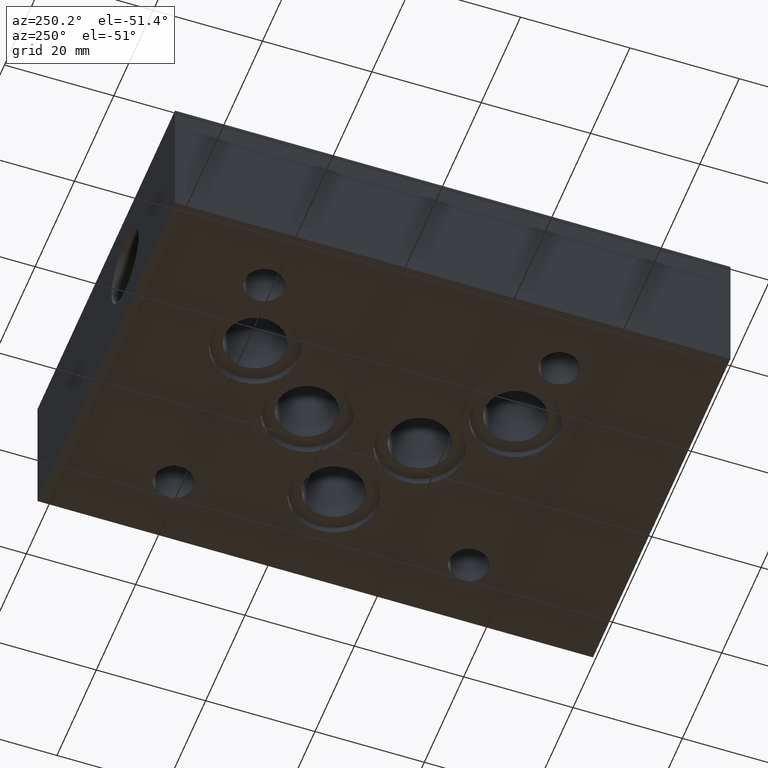
[diagram: clean part render]
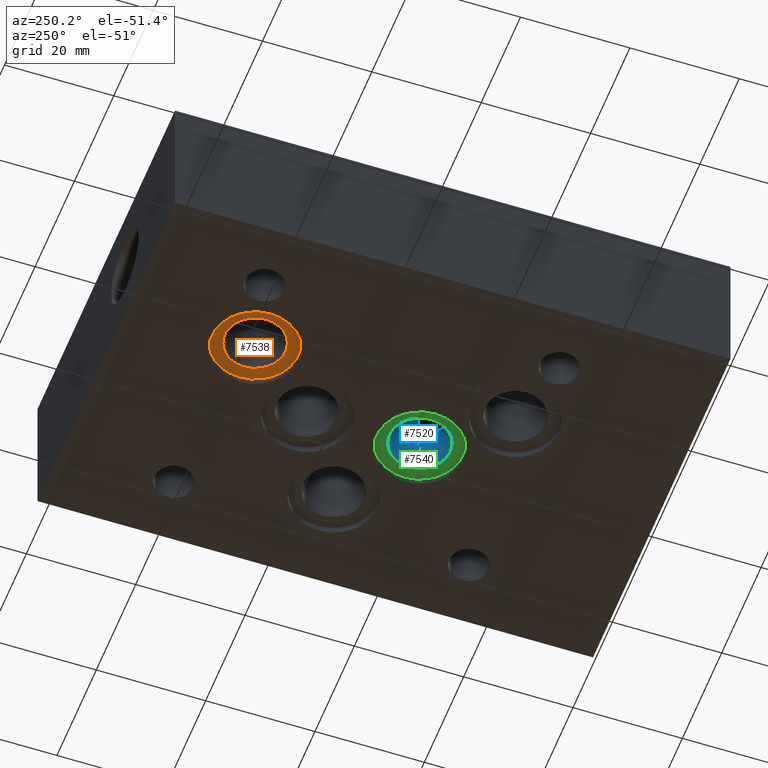
[diagram: same view with three faces highlighted in distinct colors, each labeled with its STEP entity id]
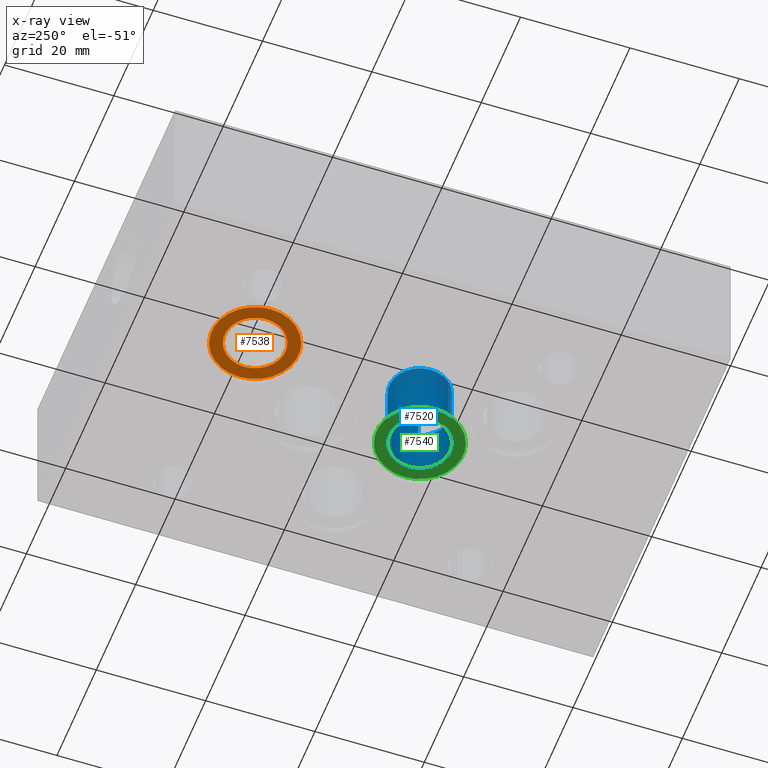
[diagram: x-ray of the same camera — body ghosted, the three highlighted faces saturated]
A machine part, auxiliary view with three faces highlighted in distinct colors.
The next image is the same camera in x-ray (body ghosted, the three faces saturated) — at least one of them is partly hidden behind the body in this view.
Their STEP definitions:

[orange] entity #7538 — the highlighted planar face has unit normal (0, 0, -1).
#65=CIRCLE('',#7851,5.5626);
#107=CIRCLE('',#7913,7.9375);
#108=CIRCLE('',#7914,7.9375);
#161=FACE_BOUND('',#1222,.T.);
#443=PLANE('',#7915);
#809=FACE_OUTER_BOUND('',#1221,.T.);
#1221=EDGE_LOOP('',(#6678,#6679));
#1222=EDGE_LOOP('',(#6680));
#3626=VERTEX_POINT('',#12353);
#3681=VERTEX_POINT('',#12690);
#3682=VERTEX_POINT('',#12692);
#4623=EDGE_CURVE('',#3626,#3626,#65,.T.);
#4702=EDGE_CURVE('',#3682,#3681,#107,.T.);
#4703=EDGE_CURVE('',#3681,#3682,#108,.T.);
#6678=ORIENTED_EDGE('',*,*,#4702,.T.);
#6679=ORIENTED_EDGE('',*,*,#4703,.T.);
#6680=ORIENTED_EDGE('',*,*,#4623,.T.);
#7538=ADVANCED_FACE('',(#809,#161),#443,.T.);
#7851=AXIS2_PLACEMENT_3D('',#12354,#9271,#9272);
#7913=AXIS2_PLACEMENT_3D('',#12693,#9419,#9420);
#7914=AXIS2_PLACEMENT_3D('',#12694,#9421,#9422);
#7915=AXIS2_PLACEMENT_3D('',#12695,#9423,#9424);
#9271=DIRECTION('center_axis',(0.,0.,1.));
#9272=DIRECTION('ref_axis',(1.,0.,0.));
#9419=DIRECTION('center_axis',(0.,0.,-1.));
#9420=DIRECTION('ref_axis',(1.,0.,0.));
#9421=DIRECTION('center_axis',(0.,0.,-1.));
#9422=DIRECTION('ref_axis',(1.,0.,0.));
#9423=DIRECTION('center_axis',(0.,0.,-1.));
#9424=DIRECTION('ref_axis',(1.,0.,0.));
#12353=CARTESIAN_POINT('',(19.8501,77.8002,1.3208));
#12354=CARTESIAN_POINT('Origin',(25.4127,77.8002,1.3208));
#12690=CARTESIAN_POINT('',(17.4752,77.8002,1.3208));
#12692=CARTESIAN_POINT('',(33.3502,77.8002,1.3208));
#12693=CARTESIAN_POINT('Origin',(25.4127,77.8002,1.3208));
#12694=CARTESIAN_POINT('Origin',(25.4127,77.8002,1.3208));
#12695=CARTESIAN_POINT('Origin',(25.4127,77.8002,1.3208));

[blue] entity #7520 — the highlighted cylindrical surface (bore or boss wall) has radius 5.5626 mm, axis along (0, 0, -1).
#20=CYLINDRICAL_SURFACE('',#7859,5.5626);
#69=CIRCLE('',#7857,5.5626);
#70=CIRCLE('',#7858,5.5626);
#71=CIRCLE('',#7860,5.5626);
#791=FACE_OUTER_BOUND('',#1200,.T.);
#1200=EDGE_LOOP('',(#6565,#6566,#6567,#6568,#6569,#6570,#6571,#6572));
#2023=LINE('',#12431,#2815);
#2024=LINE('',#12433,#2816);
#2025=LINE('',#12445,#2817);
#2815=VECTOR('',#9295,5.5626);
#2816=VECTOR('',#9296,10.);
#2817=VECTOR('',#9297,10.);
#2996=B_SPLINE_CURVE_WITH_KNOTS('',3,(#12435,#12436,#12437,#12438,#12439,
#12440,#12441,#12442,#12443,#12444),.UNSPECIFIED.,.F.,.F.,(4,2,2,2,4),(0.160419260800216,
0.209535754585956,0.419071509171912,0.628607263757868,0.677723757544784),
 .UNSPECIFIED.);
#3631=VERTEX_POINT('',#12387);
#3633=VERTEX_POINT('',#12401);
#3634=VERTEX_POINT('',#12403);
#3635=VERTEX_POINT('',#12429);
#3636=VERTEX_POINT('',#12432);
#3637=VERTEX_POINT('',#12434);
#4633=EDGE_CURVE('',#3631,#3633,#69,.T.);
#4634=EDGE_CURVE('',#3633,#3634,#70,.T.);
#4636=EDGE_CURVE('',#3635,#3635,#71,.T.);
#4637=EDGE_CURVE('',#3635,#3633,#2023,.T.);
#4638=EDGE_CURVE('',#3636,#3631,#2024,.T.);
#4639=EDGE_CURVE('',#3637,#3636,#2996,.T.);
#4640=EDGE_CURVE('',#3634,#3637,#2025,.T.);
#6565=ORIENTED_EDGE('',*,*,#4636,.F.);
#6566=ORIENTED_EDGE('',*,*,#4637,.T.);
#6567=ORIENTED_EDGE('',*,*,#4633,.F.);
#6568=ORIENTED_EDGE('',*,*,#4638,.F.);
#6569=ORIENTED_EDGE('',*,*,#4639,.F.);
#6570=ORIENTED_EDGE('',*,*,#4640,.F.);
#6571=ORIENTED_EDGE('',*,*,#4634,.F.);
#6572=ORIENTED_EDGE('',*,*,#4637,.F.);
#7520=ADVANCED_FACE('',(#791),#20,.F.);
#7857=AXIS2_PLACEMENT_3D('',#12402,#9287,#9288);
#7858=AXIS2_PLACEMENT_3D('',#12404,#9289,#9290);
#7859=AXIS2_PLACEMENT_3D('',#12428,#9291,#9292);
#7860=AXIS2_PLACEMENT_3D('',#12430,#9293,#9294);
#9287=DIRECTION('center_axis',(0.,0.,-1.));
#9288=DIRECTION('ref_axis',(1.,0.,0.));
#9289=DIRECTION('center_axis',(0.,0.,-1.));
#9290=DIRECTION('ref_axis',(1.,0.,0.));
#9291=DIRECTION('center_axis',(0.,0.,-1.));
#9292=DIRECTION('ref_axis',(1.,0.,0.));
#9293=DIRECTION('center_axis',(0.,0.,1.));
#9294=DIRECTION('ref_axis',(1.,0.,0.));
#9295=DIRECTION('',(0.,0.,1.));
#9296=DIRECTION('',(0.,0.,1.));
#9297=DIRECTION('',(0.,0.,-1.));
#12387=CARTESIAN_POINT('',(38.1764740109648,38.3468127609718,14.9860000000012));
#12401=CARTESIAN_POINT('',(30.9753,43.6626,14.9860000000012));
#12402=CARTESIAN_POINT('Origin',(36.5379,43.6626,14.986));
#12403=CARTESIAN_POINT('',(41.8536872390231,42.0240259890237,14.9860000000012));
#12404=CARTESIAN_POINT('Origin',(36.5379,43.6626,14.986));
#12428=CARTESIAN_POINT('Origin',(36.5379,43.6626,7.493));
#12429=CARTESIAN_POINT('',(30.9753,43.6626,1.3208));
#12430=CARTESIAN_POINT('Origin',(36.5379,43.6626,1.3208));
#12431=CARTESIAN_POINT('',(30.9753,43.6626,7.493));
#12432=CARTESIAN_POINT('',(38.1764740109648,38.3468127609718,10.4140000000007));
#12433=CARTESIAN_POINT('',(38.1764740109648,38.3468127609718,7.49300000000062));
#12434=CARTESIAN_POINT('',(41.8536872390231,42.0240259890237,10.4140000000007));
#12435=CARTESIAN_POINT('Ctrl Pts',(41.8536872390224,42.0240259890239,10.414));
#12436=CARTESIAN_POINT('Ctrl Pts',(41.8026044501466,41.8583055300024,10.4139394870037));
#12437=CARTESIAN_POINT('Ctrl Pts',(41.7436066178898,41.6945132276929,10.4138841681628));
#12438=CARTESIAN_POINT('Ctrl Pts',(41.3932304881661,40.8486303923618,10.4136225949604));
#12439=CARTESIAN_POINT('Ctrl Pts',(40.9651326909242,40.2231283288676,10.4135183715782));
#12440=CARTESIAN_POINT('Ctrl Pts',(39.9773716711324,39.2353673090758,10.4135183715782));
#12441=CARTESIAN_POINT('Ctrl Pts',(39.3518696076382,38.807269511834,10.4136225949604));
#12442=CARTESIAN_POINT('Ctrl Pts',(38.5059867723033,38.4568933821086,10.4138841681628));
#12443=CARTESIAN_POINT('Ctrl Pts',(38.3421944699898,38.3978955498506,10.4139394870037));
#12444=CARTESIAN_POINT('Ctrl Pts',(38.1764740109642,38.3468127609739,10.414));
#12445=CARTESIAN_POINT('',(41.8536872390231,42.0240259890237,7.49300000000062));

[green] entity #7540 — the highlighted planar face has unit normal (0, 0, -1).
#71=CIRCLE('',#7860,5.5626);
#111=CIRCLE('',#7919,7.9375);
#112=CIRCLE('',#7920,7.9375);
#162=FACE_BOUND('',#1225,.T.);
#444=PLANE('',#7921);
#811=FACE_OUTER_BOUND('',#1224,.T.);
#1224=EDGE_LOOP('',(#6687,#6688));
#1225=EDGE_LOOP('',(#6689));
#3635=VERTEX_POINT('',#12429);
#3685=VERTEX_POINT('',#12701);
#3686=VERTEX_POINT('',#12703);
#4636=EDGE_CURVE('',#3635,#3635,#71,.T.);
#4707=EDGE_CURVE('',#3686,#3685,#111,.T.);
#4708=EDGE_CURVE('',#3685,#3686,#112,.T.);
#6687=ORIENTED_EDGE('',*,*,#4707,.T.);
#6688=ORIENTED_EDGE('',*,*,#4708,.T.);
#6689=ORIENTED_EDGE('',*,*,#4636,.T.);
#7540=ADVANCED_FACE('',(#811,#162),#444,.T.);
#7860=AXIS2_PLACEMENT_3D('',#12430,#9293,#9294);
#7919=AXIS2_PLACEMENT_3D('',#12704,#9432,#9433);
#7920=AXIS2_PLACEMENT_3D('',#12705,#9434,#9435);
#7921=AXIS2_PLACEMENT_3D('',#12706,#9436,#9437);
#9293=DIRECTION('center_axis',(0.,0.,1.));
#9294=DIRECTION('ref_axis',(1.,0.,0.));
#9432=DIRECTION('center_axis',(0.,0.,-1.));
#9433=DIRECTION('ref_axis',(1.,0.,0.));
#9434=DIRECTION('center_axis',(0.,0.,-1.));
#9435=DIRECTION('ref_axis',(1.,0.,0.));
#9436=DIRECTION('center_axis',(0.,0.,-1.));
#9437=DIRECTION('ref_axis',(1.,0.,0.));
#12429=CARTESIAN_POINT('',(30.9753,43.6626,1.3208));
#12430=CARTESIAN_POINT('Origin',(36.5379,43.6626,1.3208));
#12701=CARTESIAN_POINT('',(28.6004,43.6626,1.3208));
#12703=CARTESIAN_POINT('',(44.4754,43.6626,1.3208));
#12704=CARTESIAN_POINT('Origin',(36.5379,43.6626,1.3208));
#12705=CARTESIAN_POINT('Origin',(36.5379,43.6626,1.3208));
#12706=CARTESIAN_POINT('Origin',(36.5379,43.6626,1.3208));